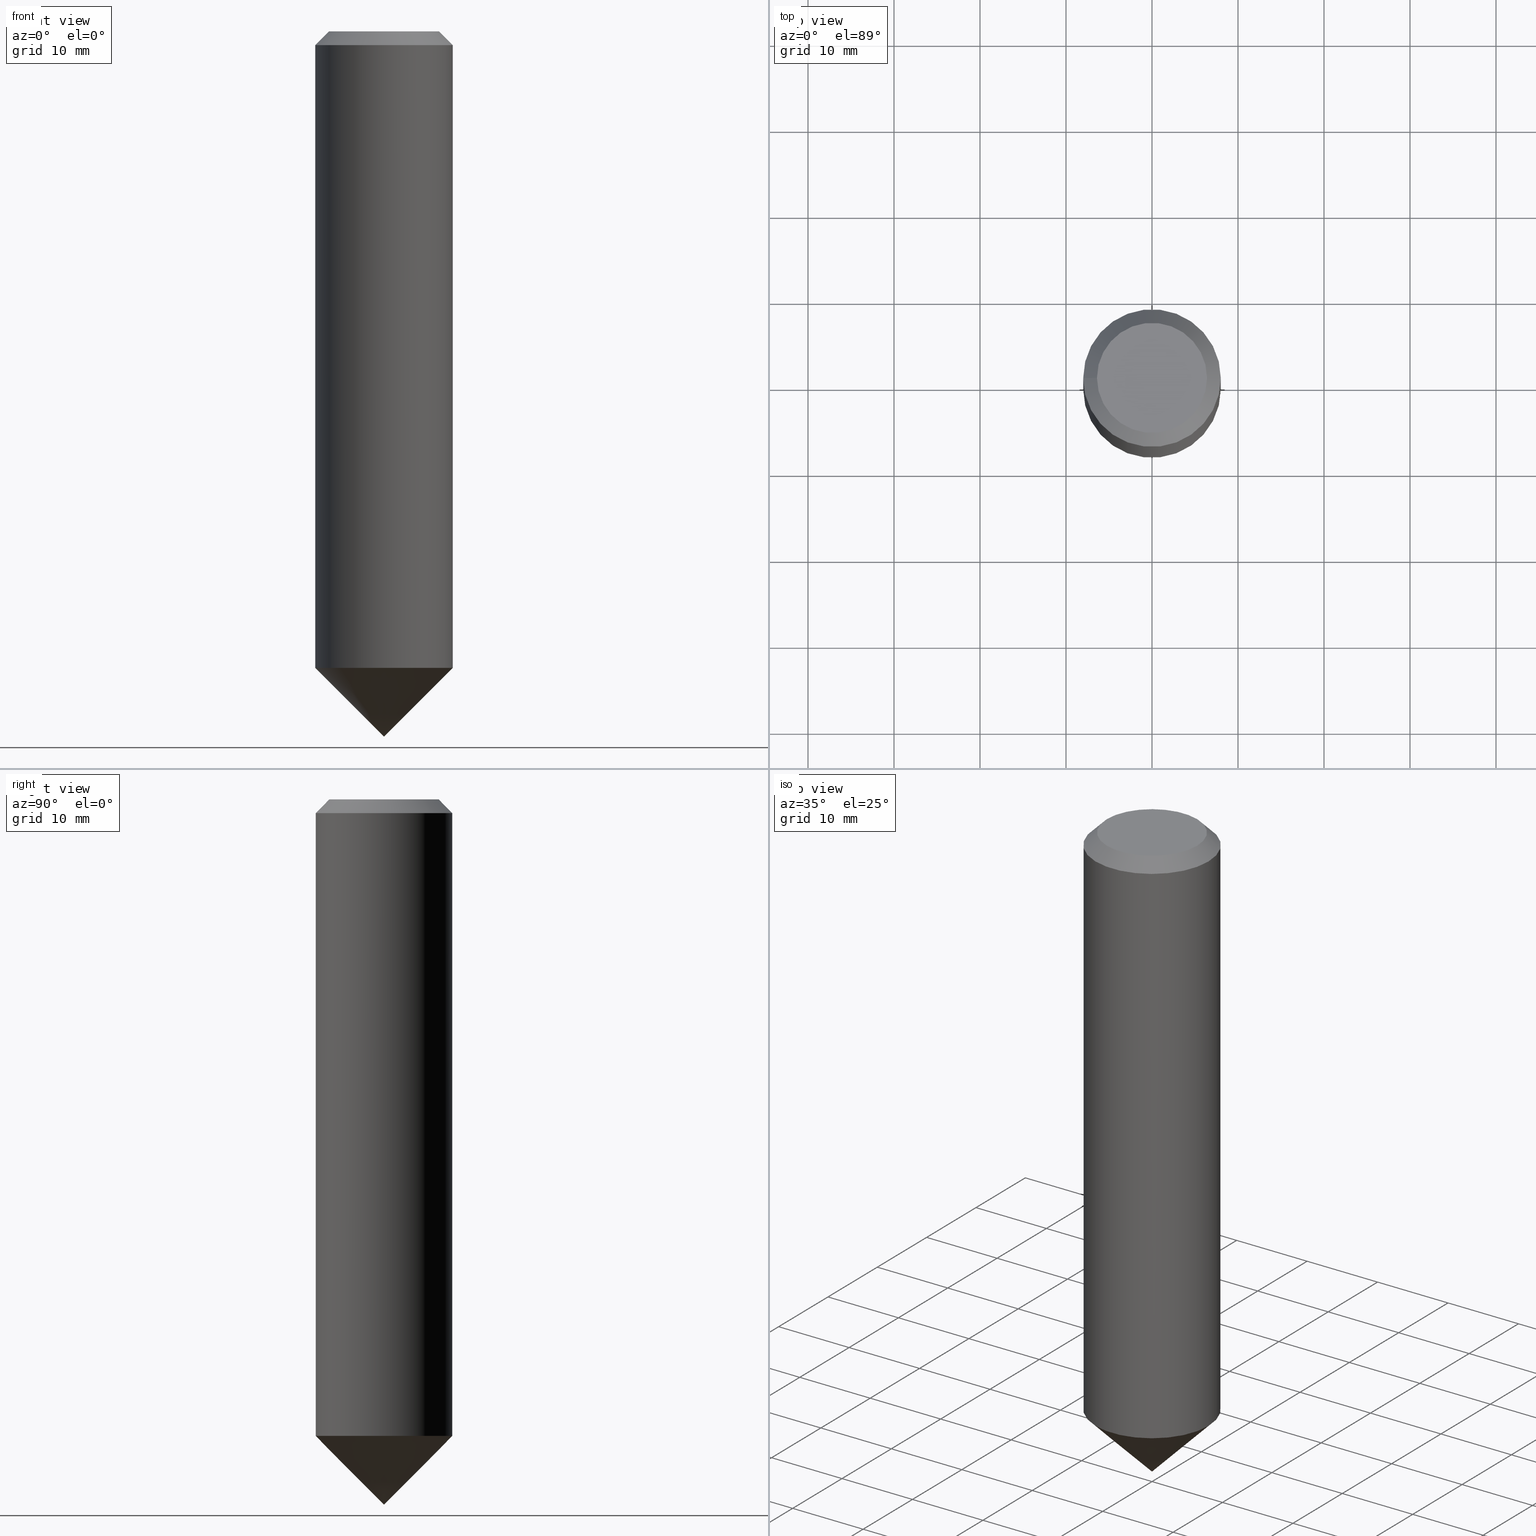
[diagram: canonical four-view strip — front | top / right | iso, engineering-drawing reading convention]
A machine part, canonical four-view strip (front | top / right | iso — engineering-drawing reading convention). The complete STEP part file that produces these views, byte-faithful:
ISO-10303-21;
HEADER;
FILE_DESCRIPTION (( 'STEP AP203' ),
    '1' );
FILE_NAME ('890.160.00.STEP',
    '2019-01-08T22:16:06',
    ( '' ),
    ( '' ),
    'SwSTEP 2.0',
    'SolidWorks 2019',
    '' );
FILE_SCHEMA (( 'CONFIG_CONTROL_DESIGN' ));
ENDSEC;

DATA;
#1 = CC_DESIGN_PERSON_AND_ORGANIZATION_ASSIGNMENT ( #4, #35, ( #85 ) ) ;
#2 = DIRECTION ( 'NONE',  ( -6.982962677686266711E-15, 0.0000000000000000000, -1.000000000000000000 ) ) ;
#3 = VERTEX_POINT ( 'NONE', #63 ) ;
#4 = PERSON_AND_ORGANIZATION ( #41, #12 ) ;
#5 = DATE_TIME_ROLE ( 'classification_date' ) ;
#6 = AXIS2_PLACEMENT_3D ( 'NONE', #102, #115, #149 ) ;
#7 = COORDINATED_UNIVERSAL_TIME_OFFSET ( 1, 0, .AHEAD. ) ;
#8 = APPROVAL_PERSON_ORGANIZATION ( #118, #84, #163 ) ;
#9 = CC_DESIGN_PERSON_AND_ORGANIZATION_ASSIGNMENT ( #182, #127, ( #14 ) ) ;
#10 = CYLINDRICAL_SURFACE ( 'NONE', #178, 7.999999999999996447 ) ;
#11 = CIRCLE ( 'NONE', #98, 7.999999999999996447 ) ;
#12 = ORGANIZATION ( 'UNSPECIFIED', 'UNSPECIFIED', '' ) ;
#13 = CARTESIAN_POINT ( 'NONE',  ( -5.167392381487835851E-13, 0.0000000000000000000, -73.99999999999998579 ) ) ;
#14 = PRODUCT_DEFINITION ( 'UNKNOWN', '', #85, #21 ) ;
#15 = VERTEX_POINT ( 'NONE', #66 ) ;
#16 = FACE_OUTER_BOUND ( 'NONE', #117, .T. ) ;
#17 = CIRCLE ( 'NONE', #109, 7.999999999999996447 ) ;
#18 = DIRECTION ( 'NONE',  ( -6.982962677686266711E-15, -0.0000000000000000000, -1.000000000000000000 ) ) ;
#19 = UNCERTAINTY_MEASURE_WITH_UNIT (LENGTH_MEASURE( 1.000000000000000082E-05 ), #176, 'distance_accuracy_value', 'NONE');
#20 = APPLICATION_PROTOCOL_DEFINITION ( 'international standard', 'config_control_design', 1994, #25 ) ;
#21 = DESIGN_CONTEXT ( 'detailed design', #25, 'design' ) ;
#22 = DATE_AND_TIME ( #51, #99 ) ;
#23 = APPROVAL_STATUS ( 'not_yet_approved' ) ;
#24 = SECURITY_CLASSIFICATION_LEVEL ( 'unclassified' ) ;
#25 = APPLICATION_CONTEXT ( 'configuration controlled 3d designs of mechanical parts and assemblies' ) ;
#26 = ORIENTED_EDGE ( 'NONE', *, *, #142, .T. ) ;
#27 =( GEOMETRIC_REPRESENTATION_CONTEXT ( 3 ) GLOBAL_UNCERTAINTY_ASSIGNED_CONTEXT ( ( #19 ) ) GLOBAL_UNIT_ASSIGNED_CONTEXT ( ( #176, #171, #47 ) ) REPRESENTATION_CONTEXT ( 'NONE', 'WORKASPACE' ) );
#28 = DIRECTION ( 'NONE',  ( 1.000000000000000000, 0.0000000000000000000, -6.938893903907231533E-15 ) ) ;
#29 = FACE_OUTER_BOUND ( 'NONE', #141, .T. ) ;
#30 = DIRECTION ( 'NONE',  ( 1.000000000000000000, 0.0000000000000000000, -6.938893903907231533E-15 ) ) ;
#31 = PERSON_AND_ORGANIZATION ( #41, #12 ) ;
#32 = APPLICATION_CONTEXT ( 'configuration controlled 3d designs of mechanical parts and assemblies' ) ;
#33 = PRODUCT ( '890.160.00', '890.160.00', '', ( #100 ) ) ;
#34 = ADVANCED_FACE ( 'NONE', ( #75 ), #53, .T. ) ;
#35 = PERSON_AND_ORGANIZATION_ROLE ( 'creator' ) ;
#36 = APPROVAL ( #167, 'UNSPECIFIED' ) ;
#37 = APPROVAL_DATE_TIME ( #71, #76 ) ;
#38 = APPROVAL_DATE_TIME ( #181, #84 ) ;
#39 = EDGE_LOOP ( 'NONE', ( #154 ) ) ;
#40 = EDGE_LOOP ( 'NONE', ( #54 ) ) ;
#41 = PERSON ( 'UNSPECIFIED', 'UNSPECIFIED', 'UNSPECIFIED', ('UNSPECIFIED'), ('UNSPECIFIED'), ('UNSPECIFIED') ) ;
#42 = DIRECTION ( 'NONE',  ( -1.000000000000000000, 0.0000000000000000000, 6.982962677686267499E-15 ) ) ;
#43 = SECURITY_CLASSIFICATION ( '', '', #24 ) ;
#44 = DIRECTION ( 'NONE',  ( -1.000000000000000000, 0.0000000000000000000, 6.982962677686267499E-15 ) ) ;
#45 = ADVANCED_BREP_SHAPE_REPRESENTATION ( '890.160.00', ( #65, #67, #6 ), #27 ) ;
#46 = APPLICATION_PROTOCOL_DEFINITION ( 'international standard', 'config_control_design', 1994, #32 ) ;
#47 =( NAMED_UNIT ( * ) SI_UNIT ( $, .STERADIAN. ) SOLID_ANGLE_UNIT ( ) );
#48 = CC_DESIGN_SECURITY_CLASSIFICATION ( #43, ( #85 ) ) ;
#49 = COORDINATED_UNIVERSAL_TIME_OFFSET ( 1, 0, .AHEAD. ) ;
#50 = LOCAL_TIME ( 23, 16, 6.000000000000000000, #68 ) ;
#51 = CALENDAR_DATE ( 2019, 8, 1 ) ;
#52 = SHAPE_DEFINITION_REPRESENTATION ( #170, #45 ) ;
#53 = CONICAL_SURFACE ( 'NONE', #177, 1000.000000000002842, 0.7853981633974498333 ) ;
#54 = ORIENTED_EDGE ( 'NONE', *, *, #142, .F. ) ;
#55 = COORDINATED_UNIVERSAL_TIME_OFFSET ( 1, 0, .AHEAD. ) ;
#56 = DIRECTION ( 'NONE',  ( 6.982962677686266711E-15, 0.0000000000000000000, 1.000000000000000000 ) ) ;
#57 = LOCAL_TIME ( 23, 16, 6.000000000000000000, #83 ) ;
#58 = ADVANCED_FACE ( 'NONE', ( #157 ), #113, .F. ) ;
#59 = DIRECTION ( 'NONE',  ( -1.000000000000000000, 0.0000000000000000000, 6.993104012531503599E-15 ) ) ;
#60 = CARTESIAN_POINT ( 'NONE',  ( -5.167392381487835851E-13, 0.0000000000000000000, -73.99999999999998579 ) ) ;
#61 = FACE_BOUND ( 'NONE', #129, .T. ) ;
#62 = AXIS2_PLACEMENT_3D ( 'NONE', #80, #108, #44 ) ;
#63 = CARTESIAN_POINT ( 'NONE',  ( 7.999999999999479527, 0.0000000000000000000, -74.00000000000009948 ) ) ;
#64 = CC_DESIGN_DATE_AND_TIME_ASSIGNMENT ( #153, #5, ( #43 ) ) ;
#65 = MANIFOLD_SOLID_BREP ( 'TYp 17 drehen[1]', #123 ) ;
#66 = CARTESIAN_POINT ( 'NONE',  ( -8.000000000000010658, 0.0000000000000000000, -1.599999999999948352 ) ) ;
#67 = MANIFOLD_SOLID_BREP ( 'TYp 17 drehen[2]', #155 ) ;
#68 = COORDINATED_UNIVERSAL_TIME_OFFSET ( 1, 0, .AHEAD. ) ;
#69 = APPROVAL_STATUS ( 'not_yet_approved' ) ;
#70 = EDGE_CURVE ( 'NONE', #122, #122, #17, .T. ) ;
#71 = DATE_AND_TIME ( #73, #133 ) ;
#72 = ORIENTED_EDGE ( 'NONE', *, *, #125, .T. ) ;
#73 = CALENDAR_DATE ( 2019, 8, 1 ) ;
#74 = CC_DESIGN_APPROVAL ( #84, ( #85 ) ) ;
#75 = FACE_OUTER_BOUND ( 'NONE', #39, .T. ) ;
#76 = APPROVAL ( #69, 'UNSPECIFIED' ) ;
#77 = FACE_OUTER_BOUND ( 'NONE', #40, .T. ) ;
#78 = DIRECTION ( 'NONE',  ( -1.000000000000000000, 0.0000000000000000000, 6.982962677686266711E-15 ) ) ;
#79 = FACE_OUTER_BOUND ( 'NONE', #143, .T. ) ;
#80 = CARTESIAN_POINT ( 'NONE',  ( 0.0000000000000000000, 0.0000000000000000000, 0.0000000000000000000 ) ) ;
#81 = APPROVAL_PERSON_ORGANIZATION ( #128, #36, #165 ) ;
#82 = PLANE ( 'NONE',  #172 ) ;
#83 = COORDINATED_UNIVERSAL_TIME_OFFSET ( 1, 0, .AHEAD. ) ;
#84 = APPROVAL ( #23, 'UNSPECIFIED' ) ;
#85 = PRODUCT_DEFINITION_FORMATION_WITH_SPECIFIED_SOURCE ( 'ANY', '', #33, .NOT_KNOWN. ) ;
#86 = PERSON_AND_ORGANIZATION_ROLE ( 'design_supplier' ) ;
#87 = ADVANCED_FACE ( 'NONE', ( #160, #61 ), #162, .T. ) ;
#88 = CALENDAR_DATE ( 2019, 8, 1 ) ;
#89 = ORIENTED_EDGE ( 'NONE', *, *, #125, .F. ) ;
#90 = CC_DESIGN_PERSON_AND_ORGANIZATION_ASSIGNMENT ( #139, #140, ( #43 ) ) ;
#91 = CIRCLE ( 'NONE', #148, 8.000000000000000000 ) ;
#92 = ADVANCED_FACE ( 'NONE', ( #16 ), #82, .F. ) ;
#93 = CARTESIAN_POINT ( 'NONE',  ( -1.117274028429805514E-14, 0.0000000000000000000, -1.600000000000004086 ) ) ;
#94 = DIRECTION ( 'NONE',  ( -1.000000000000000000, 0.0000000000000000000, 6.938893903907231533E-15 ) ) ;
#95 = CARTESIAN_POINT ( 'NONE',  ( -5.167392381487839890E-13, 0.0000000000000000000, -74.00000000000004263 ) ) ;
#96 = CARTESIAN_POINT ( 'NONE',  ( -5.726029395702739208E-13, 0.0000000000000000000, -82.00000000000000000 ) ) ;
#97 = DIRECTION ( 'NONE',  ( -6.982962677686266711E-15, 0.0000000000000000000, -1.000000000000000000 ) ) ;
#98 = AXIS2_PLACEMENT_3D ( 'NONE', #144, #159, #30 ) ;
#99 = LOCAL_TIME ( 23, 16, 6.000000000000000000, #55 ) ;
#100 = MECHANICAL_CONTEXT ( 'NONE', #32, 'mechanical' ) ;
#101 = AXIS2_PLACEMENT_3D ( 'NONE', #60, #136, #175 ) ;
#102 = CARTESIAN_POINT ( 'NONE',  ( 0.0000000000000000000, 0.0000000000000000000, 0.0000000000000000000 ) ) ;
#103 = DATE_TIME_ROLE ( 'creation_date' ) ;
#104 = PERSON_AND_ORGANIZATION ( #41, #12 ) ;
#105 = EDGE_LOOP ( 'NONE', ( #89 ) ) ;
#106 = AXIS2_PLACEMENT_3D ( 'NONE', #147, #134, #121 ) ;
#107 = ORIENTED_EDGE ( 'NONE', *, *, #174, .F. ) ;
#108 = DIRECTION ( 'NONE',  ( -6.982962677686266711E-15, 0.0000000000000000000, -1.000000000000000000 ) ) ;
#109 = AXIS2_PLACEMENT_3D ( 'NONE', #95, #18, #28 ) ;
#110 = CIRCLE ( 'NONE', #62, 6.399999999999994138 ) ;
#111 = DIRECTION ( 'NONE',  ( -6.982962677686266711E-15, 0.0000000000000000000, -1.000000000000000000 ) ) ;
#112 = PRODUCT_RELATED_PRODUCT_CATEGORY ( 'detail', '', ( #33 ) ) ;
#113 = PLANE ( 'NONE',  #106 ) ;
#114 = CALENDAR_DATE ( 2019, 8, 1 ) ;
#115 = DIRECTION ( 'NONE',  ( 0.0000000000000000000, 0.0000000000000000000, 1.000000000000000000 ) ) ;
#116 = ADVANCED_FACE ( 'NONE', ( #79 ), #158, .T. ) ;
#117 = EDGE_LOOP ( 'NONE', ( #168 ) ) ;
#118 = PERSON_AND_ORGANIZATION ( #41, #12 ) ;
#119 = ORIENTED_EDGE ( 'NONE', *, *, #174, .T. ) ;
#120 = DIRECTION ( 'NONE',  ( 1.000000000000000000, 0.0000000000000000000, -6.994405055138466483E-15 ) ) ;
#121 = DIRECTION ( 'NONE',  ( -1.000000000000000000, 0.0000000000000000000, 6.982962677686266711E-15 ) ) ;
#122 = VERTEX_POINT ( 'NONE', #146 ) ;
#123 = CLOSED_SHELL ( 'NONE', ( #156, #58, #87, #116 ) ) ;
#124 = DIRECTION ( 'NONE',  ( -6.982962677686266711E-15, 0.0000000000000000000, -1.000000000000000000 ) ) ;
#125 = EDGE_CURVE ( 'NONE', #15, #15, #91, .T. ) ;
#126 = PERSON_AND_ORGANIZATION_ROLE ( 'design_owner' ) ;
#127 = PERSON_AND_ORGANIZATION_ROLE ( 'creator' ) ;
#128 = PERSON_AND_ORGANIZATION ( #41, #12 ) ;
#129 = EDGE_LOOP ( 'NONE', ( #119 ) ) ;
#130 = DATE_AND_TIME ( #114, #131 ) ;
#131 = LOCAL_TIME ( 23, 16, 6.000000000000000000, #49 ) ;
#132 = VERTEX_POINT ( 'NONE', #135 ) ;
#133 = LOCAL_TIME ( 23, 16, 6.000000000000000000, #7 ) ;
#134 = DIRECTION ( 'NONE',  ( -6.982962677686266711E-15, 0.0000000000000000000, -1.000000000000000000 ) ) ;
#135 = CARTESIAN_POINT ( 'NONE',  ( -6.399999999999994138, 0.0000000000000000000, 4.469096113719206908E-14 ) ) ;
#136 = DIRECTION ( 'NONE',  ( -6.982962677686266711E-15, 0.0000000000000000000, -1.000000000000000000 ) ) ;
#137 = PERSON_AND_ORGANIZATION ( #41, #12 ) ;
#138 = CC_DESIGN_PERSON_AND_ORGANIZATION_ASSIGNMENT ( #104, #86, ( #85 ) ) ;
#139 = PERSON_AND_ORGANIZATION ( #41, #12 ) ;
#140 = PERSON_AND_ORGANIZATION_ROLE ( 'classification_officer' ) ;
#141 = EDGE_LOOP ( 'NONE', ( #72 ) ) ;
#142 = EDGE_CURVE ( 'NONE', #3, #3, #11, .T. ) ;
#143 = EDGE_LOOP ( 'NONE', ( #26 ) ) ;
#144 = CARTESIAN_POINT ( 'NONE',  ( -5.167392381487839890E-13, 0.0000000000000000000, -74.00000000000004263 ) ) ;
#145 = CARTESIAN_POINT ( 'NONE',  ( 0.0000000000000000000, 0.0000000000000000000, 0.0000000000000000000 ) ) ;
#146 = CARTESIAN_POINT ( 'NONE',  ( 7.999999999999479527, 0.0000000000000000000, -74.00000000000009948 ) ) ;
#147 = CARTESIAN_POINT ( 'NONE',  ( -3.111405660445696787E-30, 0.0000000000000000000, -4.455709995970691549E-16 ) ) ;
#148 = AXIS2_PLACEMENT_3D ( 'NONE', #93, #111, #59 ) ;
#149 = DIRECTION ( 'NONE',  ( 1.000000000000000000, 0.0000000000000000000, 0.0000000000000000000 ) ) ;
#150 = AXIS2_PLACEMENT_3D ( 'NONE', #145, #124, #42 ) ;
#151 = APPROVAL_PERSON_ORGANIZATION ( #31, #76, #166 ) ;
#152 = CALENDAR_DATE ( 2019, 8, 1 ) ;
#153 = DATE_AND_TIME ( #88, #50 ) ;
#154 = ORIENTED_EDGE ( 'NONE', *, *, #70, .T. ) ;
#155 = CLOSED_SHELL ( 'NONE', ( #92, #34 ) ) ;
#156 = ADVANCED_FACE ( 'NONE', ( #29, #77 ), #10, .T. ) ;
#157 = FACE_OUTER_BOUND ( 'NONE', #169, .T. ) ;
#158 = PLANE ( 'NONE',  #101 ) ;
#159 = DIRECTION ( 'NONE',  ( -6.982962677686266711E-15, -0.0000000000000000000, -1.000000000000000000 ) ) ;
#160 = FACE_OUTER_BOUND ( 'NONE', #105, .T. ) ;
#161 = CC_DESIGN_PERSON_AND_ORGANIZATION_ASSIGNMENT ( #137, #126, ( #33 ) ) ;
#162 = CONICAL_SURFACE ( 'NONE', #150, 6.399999999999994138, 0.7853981633974488341 ) ;
#163 = APPROVAL_ROLE ( '' ) ;
#164 = CC_DESIGN_DATE_AND_TIME_ASSIGNMENT ( #22, #103, ( #14 ) ) ;
#165 = APPROVAL_ROLE ( '' ) ;
#166 = APPROVAL_ROLE ( '' ) ;
#167 = APPROVAL_STATUS ( 'not_yet_approved' ) ;
#168 = ORIENTED_EDGE ( 'NONE', *, *, #70, .F. ) ;
#169 = EDGE_LOOP ( 'NONE', ( #107 ) ) ;
#170 = PRODUCT_DEFINITION_SHAPE ( 'NONE', 'NONE',  #14 ) ;
#171 =( NAMED_UNIT ( * ) PLANE_ANGLE_UNIT ( ) SI_UNIT ( $, .RADIAN. ) );
#172 = AXIS2_PLACEMENT_3D ( 'NONE', #13, #2, #78 ) ;
#173 = CC_DESIGN_APPROVAL ( #76, ( #43 ) ) ;
#174 = EDGE_CURVE ( 'NONE', #132, #132, #110, .T. ) ;
#175 = DIRECTION ( 'NONE',  ( -1.000000000000000000, 0.0000000000000000000, 6.982962677686266711E-15 ) ) ;
#176 =( LENGTH_UNIT ( ) NAMED_UNIT ( * ) SI_UNIT ( .MILLI., .METRE. ) );
#177 = AXIS2_PLACEMENT_3D ( 'NONE', #183, #56, #120 ) ;
#178 = AXIS2_PLACEMENT_3D ( 'NONE', #96, #97, #94 ) ;
#179 = APPROVAL_DATE_TIME ( #130, #36 ) ;
#180 = CC_DESIGN_APPROVAL ( #36, ( #14 ) ) ;
#181 = DATE_AND_TIME ( #152, #57 ) ;
#182 = PERSON_AND_ORGANIZATION ( #41, #12 ) ;
#183 = CARTESIAN_POINT ( 'NONE',  ( 6.410359738115992689E-12, 0.0000000000000000000, 918.0000000000000000 ) ) ;
ENDSEC;
END-ISO-10303-21;
12533